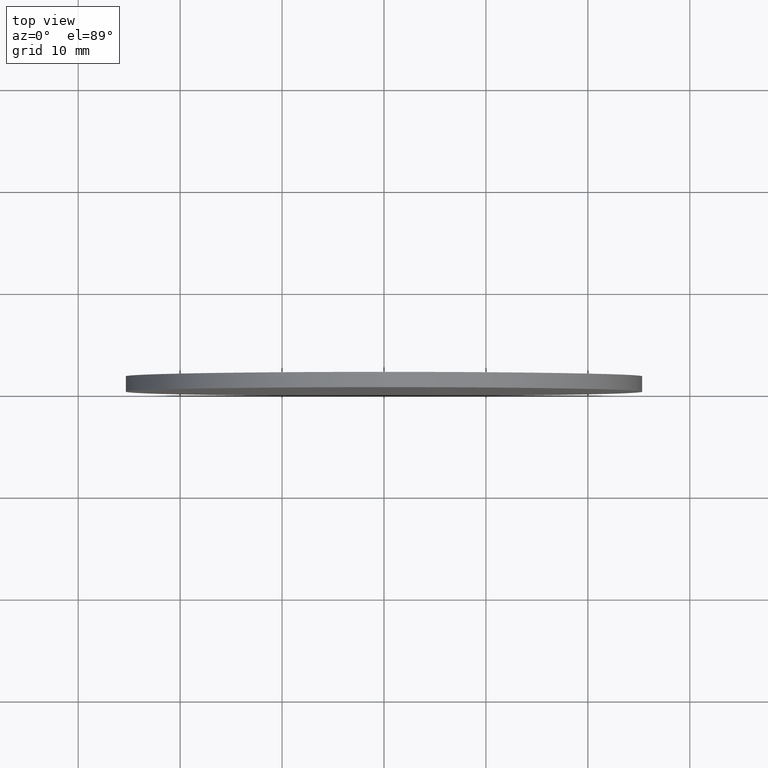
[diagram: clean part render]
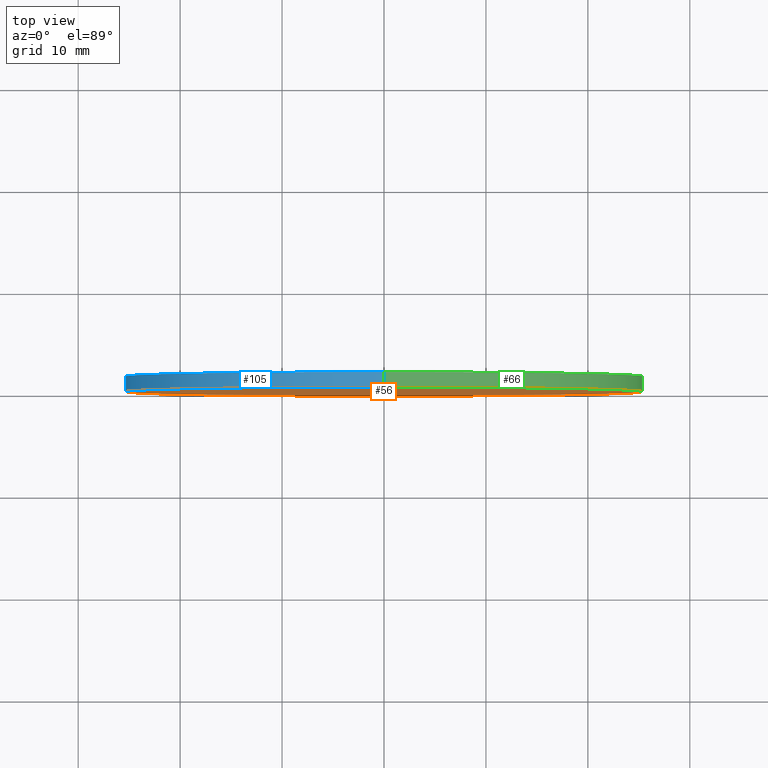
[diagram: same view with three faces highlighted in distinct colors, each labeled with its STEP entity id]
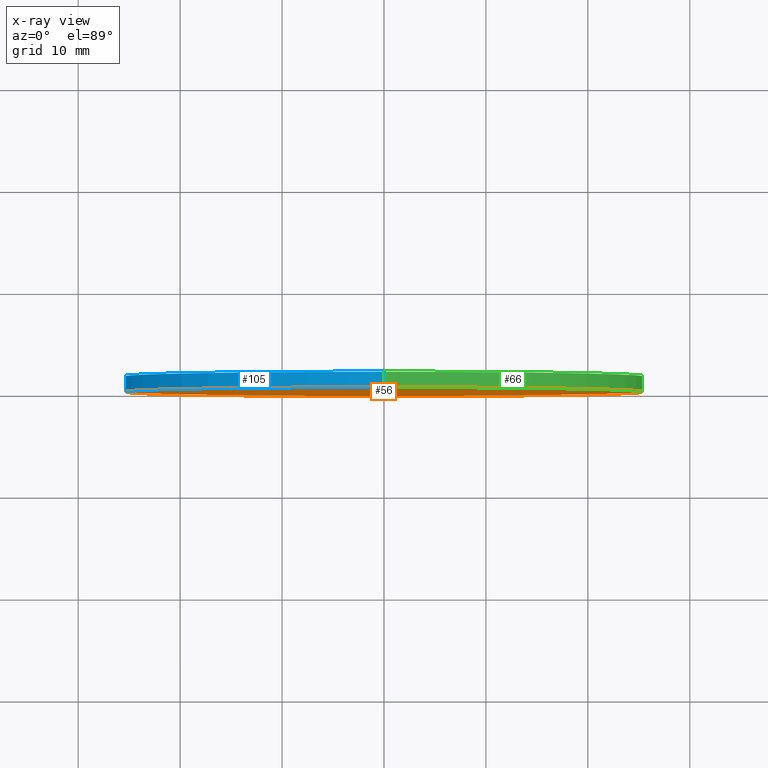
[diagram: x-ray of the same camera — body ghosted, the three highlighted faces saturated]
A machine part, top view with three faces highlighted in distinct colors.
The next image is the same camera in x-ray (body ghosted, the three faces saturated) — at least one of them is partly hidden behind the body in this view.
Their STEP definitions:

[orange] entity #56 — the highlighted planar face has unit normal (0, 1, 0).
#1 = AXIS2_PLACEMENT_3D ( 'NONE', #67, #112, #40 ) ;
#2 = AXIS2_PLACEMENT_3D ( 'NONE', #136, #78, #97 ) ;
#21 = EDGE_CURVE ( 'NONE', #80, #137, #74, .T. ) ;
#27 = ORIENTED_EDGE ( 'NONE', *, *, #21, .F. ) ;
#34 = ORIENTED_EDGE ( 'NONE', *, *, #130, .F. ) ;
#38 = CARTESIAN_POINT ( 'NONE',  ( 0.0000000000000000000, 0.0000000000000000000, 0.0000000000000000000 ) ) ;
#40 = DIRECTION ( 'NONE',  ( 0.0000000000000000000, 0.0000000000000000000, 1.000000000000000000 ) ) ;
#41 = DIRECTION ( 'NONE',  ( 0.0000000000000000000, -0.0000000000000000000, 1.000000000000000000 ) ) ;
#56 = ADVANCED_FACE ( 'NONE', ( #87 ), #119, .F. ) ;
#67 = CARTESIAN_POINT ( 'NONE',  ( 0.0000000000000000000, 0.0000000000000000000, 0.0000000000000000000 ) ) ;
#74 = CIRCLE ( 'NONE', #2, 25.39999999999999900 ) ;
#76 = DIRECTION ( 'NONE',  ( 0.0000000000000000000, 1.000000000000000000, 0.0000000000000000000 ) ) ;
#77 = EDGE_LOOP ( 'NONE', ( #34, #27 ) ) ;
#78 = DIRECTION ( 'NONE',  ( 0.0000000000000000000, 1.000000000000000000, 0.0000000000000000000 ) ) ;
#80 = VERTEX_POINT ( 'NONE', #94 ) ;
#87 = FACE_OUTER_BOUND ( 'NONE', #77, .T. ) ;
#90 = CIRCLE ( 'NONE', #1, 25.39999999999999900 ) ;
#94 = CARTESIAN_POINT ( 'NONE',  ( 3.110602869834276900E-015, 0.0000000000000000000, 25.39999999999999900 ) ) ;
#97 = DIRECTION ( 'NONE',  ( 0.0000000000000000000, 0.0000000000000000000, 1.000000000000000000 ) ) ;
#102 = AXIS2_PLACEMENT_3D ( 'NONE', #38, #76, #41 ) ;
#110 = CARTESIAN_POINT ( 'NONE',  ( 0.0000000000000000000, 0.0000000000000000000, -25.39999999999999900 ) ) ;
#112 = DIRECTION ( 'NONE',  ( 0.0000000000000000000, 1.000000000000000000, 0.0000000000000000000 ) ) ;
#119 = PLANE ( 'NONE',  #102 ) ;
#130 = EDGE_CURVE ( 'NONE', #137, #80, #90, .T. ) ;
#136 = CARTESIAN_POINT ( 'NONE',  ( 0.0000000000000000000, 0.0000000000000000000, 0.0000000000000000000 ) ) ;
#137 = VERTEX_POINT ( 'NONE', #110 ) ;

[blue] entity #105 — the highlighted cylindrical surface (partial cylindrical patch) has radius 25.4 mm, axis along (-0, -1, -0).
#1 = AXIS2_PLACEMENT_3D ( 'NONE', #67, #112, #40 ) ;
#3 = DIRECTION ( 'NONE',  ( 0.0000000000000000000, 0.0000000000000000000, 1.000000000000000000 ) ) ;
#8 = CIRCLE ( 'NONE', #75, 25.39999999999999900 ) ;
#10 = DIRECTION ( 'NONE',  ( -0.0000000000000000000, -1.000000000000000000, -0.0000000000000000000 ) ) ;
#11 = VECTOR ( 'NONE', #10, 1000.000000000000000 ) ;
#15 = DIRECTION ( 'NONE',  ( 0.0000000000000000000, 1.000000000000000000, 0.0000000000000000000 ) ) ;
#18 = CARTESIAN_POINT ( 'NONE',  ( 0.0000000000000000000, 1.500000000000000000, -25.39999999999999900 ) ) ;
#23 = CYLINDRICAL_SURFACE ( 'NONE', #101, 25.39999999999999900 ) ;
#30 = CARTESIAN_POINT ( 'NONE',  ( 0.0000000000000000000, 1.500000000000000000, 0.0000000000000000000 ) ) ;
#39 = VERTEX_POINT ( 'NONE', #121 ) ;
#40 = DIRECTION ( 'NONE',  ( 0.0000000000000000000, 0.0000000000000000000, 1.000000000000000000 ) ) ;
#42 = CARTESIAN_POINT ( 'NONE',  ( 3.110602869834276900E-015, 1.500000000000000000, 25.39999999999999900 ) ) ;
#46 = ORIENTED_EDGE ( 'NONE', *, *, #61, .T. ) ;
#59 = CARTESIAN_POINT ( 'NONE',  ( 0.0000000000000000000, 1.500000000000000000, -25.39999999999999900 ) ) ;
#61 = EDGE_CURVE ( 'NONE', #139, #137, #120, .T. ) ;
#67 = CARTESIAN_POINT ( 'NONE',  ( 0.0000000000000000000, 0.0000000000000000000, 0.0000000000000000000 ) ) ;
#68 = DIRECTION ( 'NONE',  ( 0.0000000000000000000, 0.0000000000000000000, -1.000000000000000000 ) ) ;
#71 = VECTOR ( 'NONE', #124, 1000.000000000000000 ) ;
#75 = AXIS2_PLACEMENT_3D ( 'NONE', #30, #15, #3 ) ;
#79 = CARTESIAN_POINT ( 'NONE',  ( 0.0000000000000000000, 1.500000000000000000, 0.0000000000000000000 ) ) ;
#80 = VERTEX_POINT ( 'NONE', #94 ) ;
#88 = LINE ( 'NONE', #42, #11 ) ;
#90 = CIRCLE ( 'NONE', #1, 25.39999999999999900 ) ;
#92 = ORIENTED_EDGE ( 'NONE', *, *, #113, .F. ) ;
#94 = CARTESIAN_POINT ( 'NONE',  ( 3.110602869834276900E-015, 0.0000000000000000000, 25.39999999999999900 ) ) ;
#95 = FACE_OUTER_BOUND ( 'NONE', #126, .T. ) ;
#101 = AXIS2_PLACEMENT_3D ( 'NONE', #79, #109, #68 ) ;
#104 = ORIENTED_EDGE ( 'NONE', *, *, #123, .F. ) ;
#105 = ADVANCED_FACE ( 'NONE', ( #95 ), #23, .T. ) ;
#106 = ORIENTED_EDGE ( 'NONE', *, *, #130, .T. ) ;
#109 = DIRECTION ( 'NONE',  ( -0.0000000000000000000, -1.000000000000000000, -0.0000000000000000000 ) ) ;
#110 = CARTESIAN_POINT ( 'NONE',  ( 0.0000000000000000000, 0.0000000000000000000, -25.39999999999999900 ) ) ;
#112 = DIRECTION ( 'NONE',  ( 0.0000000000000000000, 1.000000000000000000, 0.0000000000000000000 ) ) ;
#113 = EDGE_CURVE ( 'NONE', #139, #39, #8, .T. ) ;
#120 = LINE ( 'NONE', #18, #71 ) ;
#121 = CARTESIAN_POINT ( 'NONE',  ( 3.110602869834276900E-015, 1.500000000000000000, 25.39999999999999900 ) ) ;
#123 = EDGE_CURVE ( 'NONE', #39, #80, #88, .T. ) ;
#124 = DIRECTION ( 'NONE',  ( -0.0000000000000000000, -1.000000000000000000, -0.0000000000000000000 ) ) ;
#126 = EDGE_LOOP ( 'NONE', ( #104, #92, #46, #106 ) ) ;
#130 = EDGE_CURVE ( 'NONE', #137, #80, #90, .T. ) ;
#137 = VERTEX_POINT ( 'NONE', #110 ) ;
#139 = VERTEX_POINT ( 'NONE', #59 ) ;

[green] entity #66 — the highlighted cylindrical surface (partial cylindrical patch) has radius 25.4 mm, axis along (-0, -1, -0).
#2 = AXIS2_PLACEMENT_3D ( 'NONE', #136, #78, #97 ) ;
#10 = DIRECTION ( 'NONE',  ( -0.0000000000000000000, -1.000000000000000000, -0.0000000000000000000 ) ) ;
#11 = VECTOR ( 'NONE', #10, 1000.000000000000000 ) ;
#18 = CARTESIAN_POINT ( 'NONE',  ( 0.0000000000000000000, 1.500000000000000000, -25.39999999999999900 ) ) ;
#21 = EDGE_CURVE ( 'NONE', #80, #137, #74, .T. ) ;
#22 = CARTESIAN_POINT ( 'NONE',  ( 0.0000000000000000000, 1.500000000000000000, 0.0000000000000000000 ) ) ;
#24 = CARTESIAN_POINT ( 'NONE',  ( 0.0000000000000000000, 1.500000000000000000, 0.0000000000000000000 ) ) ;
#31 = DIRECTION ( 'NONE',  ( 0.0000000000000000000, 0.0000000000000000000, -1.000000000000000000 ) ) ;
#33 = DIRECTION ( 'NONE',  ( -0.0000000000000000000, -1.000000000000000000, -0.0000000000000000000 ) ) ;
#39 = VERTEX_POINT ( 'NONE', #121 ) ;
#42 = CARTESIAN_POINT ( 'NONE',  ( 3.110602869834276900E-015, 1.500000000000000000, 25.39999999999999900 ) ) ;
#49 = CIRCLE ( 'NONE', #100, 25.39999999999999900 ) ;
#52 = EDGE_CURVE ( 'NONE', #39, #139, #49, .T. ) ;
#54 = EDGE_LOOP ( 'NONE', ( #114, #57, #62, #81 ) ) ;
#57 = ORIENTED_EDGE ( 'NONE', *, *, #123, .T. ) ;
#59 = CARTESIAN_POINT ( 'NONE',  ( 0.0000000000000000000, 1.500000000000000000, -25.39999999999999900 ) ) ;
#61 = EDGE_CURVE ( 'NONE', #139, #137, #120, .T. ) ;
#62 = ORIENTED_EDGE ( 'NONE', *, *, #21, .T. ) ;
#64 = FACE_OUTER_BOUND ( 'NONE', #54, .T. ) ;
#66 = ADVANCED_FACE ( 'NONE', ( #64 ), #129, .T. ) ;
#71 = VECTOR ( 'NONE', #124, 1000.000000000000000 ) ;
#74 = CIRCLE ( 'NONE', #2, 25.39999999999999900 ) ;
#78 = DIRECTION ( 'NONE',  ( 0.0000000000000000000, 1.000000000000000000, 0.0000000000000000000 ) ) ;
#80 = VERTEX_POINT ( 'NONE', #94 ) ;
#81 = ORIENTED_EDGE ( 'NONE', *, *, #61, .F. ) ;
#88 = LINE ( 'NONE', #42, #11 ) ;
#89 = AXIS2_PLACEMENT_3D ( 'NONE', #22, #33, #31 ) ;
#94 = CARTESIAN_POINT ( 'NONE',  ( 3.110602869834276900E-015, 0.0000000000000000000, 25.39999999999999900 ) ) ;
#97 = DIRECTION ( 'NONE',  ( 0.0000000000000000000, 0.0000000000000000000, 1.000000000000000000 ) ) ;
#100 = AXIS2_PLACEMENT_3D ( 'NONE', #24, #117, #135 ) ;
#110 = CARTESIAN_POINT ( 'NONE',  ( 0.0000000000000000000, 0.0000000000000000000, -25.39999999999999900 ) ) ;
#114 = ORIENTED_EDGE ( 'NONE', *, *, #52, .F. ) ;
#117 = DIRECTION ( 'NONE',  ( 0.0000000000000000000, 1.000000000000000000, 0.0000000000000000000 ) ) ;
#120 = LINE ( 'NONE', #18, #71 ) ;
#121 = CARTESIAN_POINT ( 'NONE',  ( 3.110602869834276900E-015, 1.500000000000000000, 25.39999999999999900 ) ) ;
#123 = EDGE_CURVE ( 'NONE', #39, #80, #88, .T. ) ;
#124 = DIRECTION ( 'NONE',  ( -0.0000000000000000000, -1.000000000000000000, -0.0000000000000000000 ) ) ;
#129 = CYLINDRICAL_SURFACE ( 'NONE', #89, 25.39999999999999900 ) ;
#135 = DIRECTION ( 'NONE',  ( 0.0000000000000000000, 0.0000000000000000000, 1.000000000000000000 ) ) ;
#136 = CARTESIAN_POINT ( 'NONE',  ( 0.0000000000000000000, 0.0000000000000000000, 0.0000000000000000000 ) ) ;
#137 = VERTEX_POINT ( 'NONE', #110 ) ;
#139 = VERTEX_POINT ( 'NONE', #59 ) ;